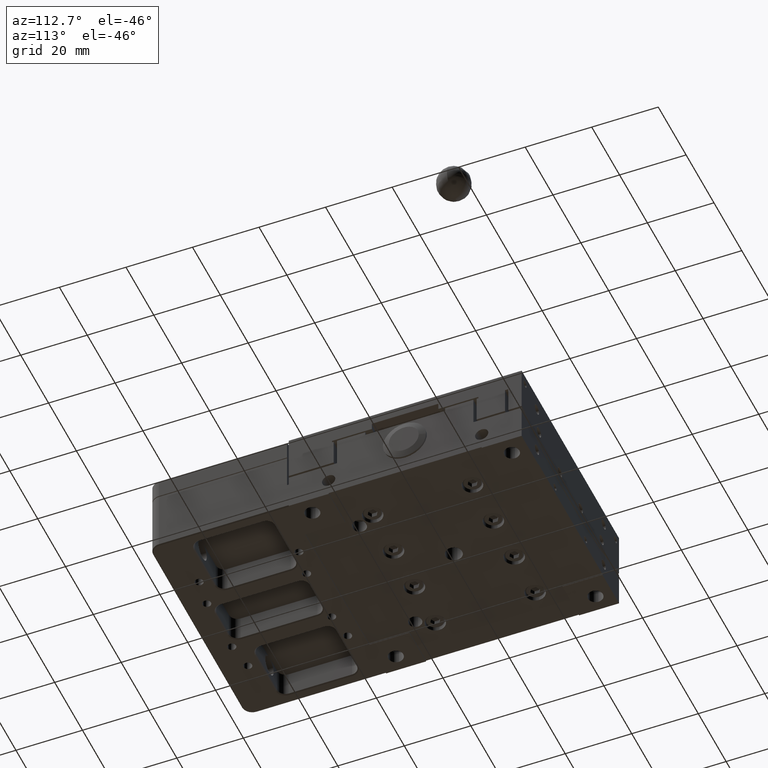
[diagram: clean part render]
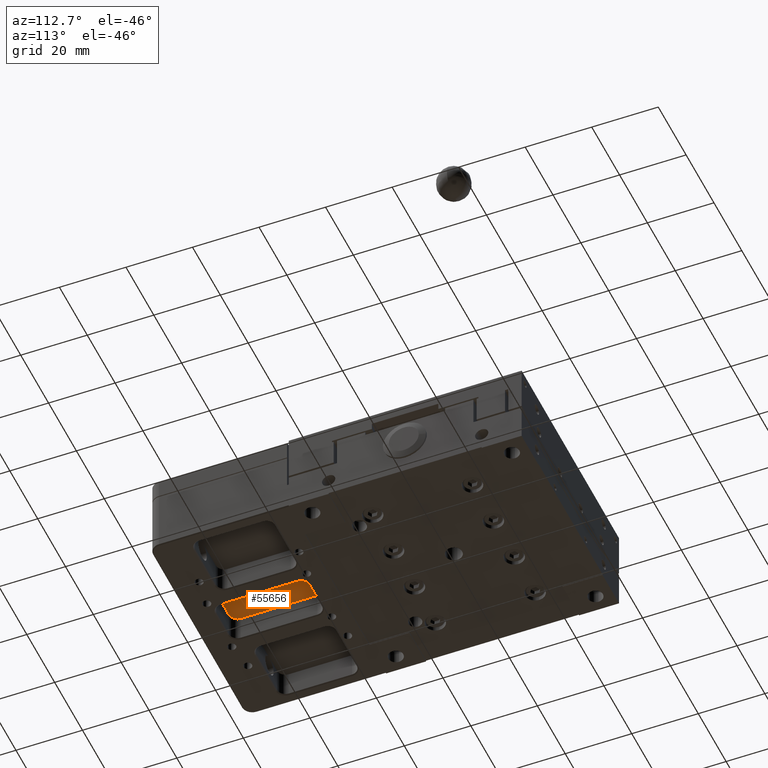
[diagram: same view with one face highlighted and labeled with its STEP entity id]
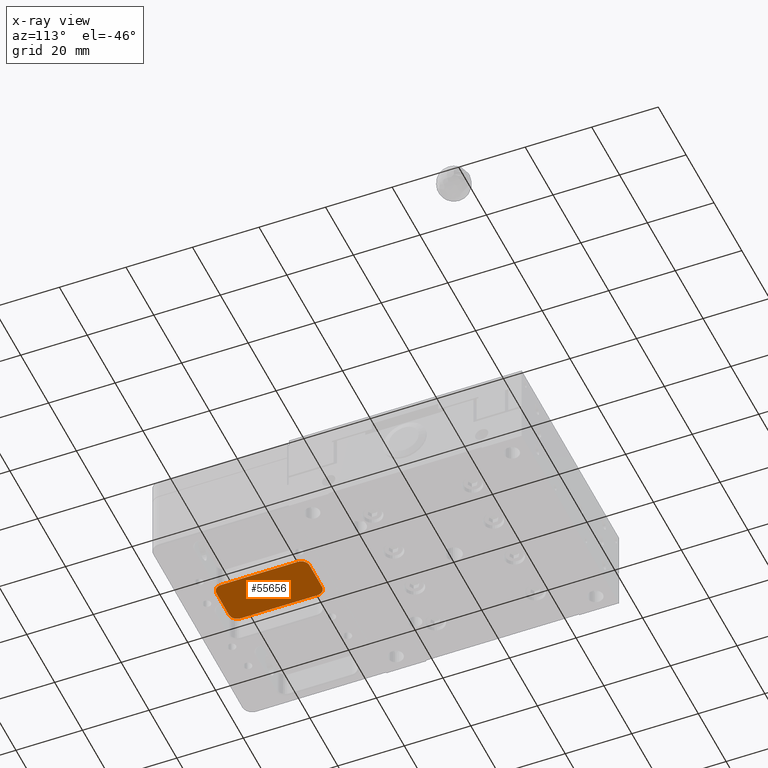
[diagram: x-ray of the same camera — body ghosted, the highlighted face saturated]
A machine part, auxiliary view. The second image highlights one B-rep face of the part: STEP entity #55656.
The next image is the same camera in x-ray: the body ghosted, the highlighted face saturated — about 0% of this face is hidden behind the body in this view.
In plain terms, the highlighted planar face has unit normal (0, 0, -1).
Its self-contained STEP definition (entity closure, byte-faithful):
#738 = CARTESIAN_POINT ( 'NONE',  ( -33.28000000000000100, -40.93999999999999800, 8.000000000000000000 ) ) ;
#1514 = ORIENTED_EDGE ( 'NONE', *, *, #41228, .T. ) ;
#1614 = CARTESIAN_POINT ( 'NONE',  ( -4.499999975758499600, -41.49999999999999300, 8.000000000000000000 ) ) ;
#1923 = LINE ( 'NONE', #6586, #17300 ) ;
#4543 = CARTESIAN_POINT ( 'NONE',  ( 6.936566276580485600, -43.34938603881244000, 8.000000000000001800 ) ) ;
#4774 = ORIENTED_EDGE ( 'NONE', *, *, #41620, .T. ) ;
#6586 = CARTESIAN_POINT ( 'NONE',  ( 8.673617379884035500E-016, -69.49999999999998600, 8.000000000000000000 ) ) ;
#7292 = DIRECTION ( 'NONE',  ( 1.000000000000000000, 0.0000000000000000000, 0.0000000000000000000 ) ) ;
#8642 = CARTESIAN_POINT ( 'NONE',  ( -4.831329923896549700, -69.49999999999998600, 8.000000000000000000 ) ) ;
#11091 = CARTESIAN_POINT ( 'NONE',  ( 6.999999999999999100, -44.00000002424000200, 8.000000000000000000 ) ) ;
#11668 = CARTESIAN_POINT ( 'NONE',  ( 7.000000002128466300, -67.33132990922153700, 8.000000000000000000 ) ) ;
#14515 = CARTESIAN_POINT ( 'NONE',  ( -7.000000000000002700, -44.00000000803000700, 7.999999999999998200 ) ) ;
#14858 = VERTEX_POINT ( 'NONE', #48533 ) ;
#15932 = ORIENTED_EDGE ( 'NONE', *, *, #39854, .T. ) ;
#17300 = VECTOR ( 'NONE', #65475, 1000.000000000000000 ) ;
#17414 = CARTESIAN_POINT ( 'NONE',  ( 4.831329909219567400, -41.49999999787114300, 8.000000000000000000 ) ) ;
#17801 = ORIENTED_EDGE ( 'NONE', *, *, #52565, .T. ) ;
#18271 = CARTESIAN_POINT ( 'NONE',  ( 6.683039022607487400, -68.26268278931122800, 7.999999999999998200 ) ) ;
#19184 = VERTEX_POINT ( 'NONE', #53270 ) ;
#19512 = VECTOR ( 'NONE', #75183, 1000.000000000000000 ) ;
#21113 = CARTESIAN_POINT ( 'NONE',  ( -6.936358649170324000, -43.34926564974560400, 8.000000000000000000 ) ) ;
#21179 = CARTESIAN_POINT ( 'NONE',  ( 4.499999991968504500, -41.49999999999999300, 8.000000000000000000 ) ) ;
#21864 = CARTESIAN_POINT ( 'NONE',  ( -5.762682798549458400, -69.18303901705098700, 7.999999999999998200 ) ) ;
#24007 = CARTESIAN_POINT ( 'NONE',  ( 4.499999991968504500, -41.49999999999999300, 8.000000000000000000 ) ) ;
#24825 = CARTESIAN_POINT ( 'NONE',  ( 6.033657284640285400, -69.00197965372322500, 8.000000000000001800 ) ) ;
#27683 = CARTESIAN_POINT ( 'NONE',  ( -6.501876632646808900, -42.46644575914376700, 8.000000000000000000 ) ) ;
#27967 = CARTESIAN_POINT ( 'NONE',  ( -6.999999999999999100, -55.49999999999999300, 7.999999999999996400 ) ) ;
#28426 = CARTESIAN_POINT ( 'NONE',  ( -6.501979657667456900, -68.53365727919049300, 8.000000000000001800 ) ) ;
#28870 = VERTEX_POINT ( 'NONE', #65712 ) ;
#30590 = CARTESIAN_POINT ( 'NONE',  ( 5.150734350254518600, -41.56364135083078500, 8.000000000000000000 ) ) ;
#31422 = CARTESIAN_POINT ( 'NONE',  ( 5.150613961184369300, -69.43656627658057800, 8.000000000000001800 ) ) ;
#34251 = CARTESIAN_POINT ( 'NONE',  ( -5.762803208054790200, -41.81716861709709600, 8.000000000000000000 ) ) ;
#34986 = CARTESIAN_POINT ( 'NONE',  ( -6.936566277092738100, -67.65061395855437400, 8.000000000000001800 ) ) ;
#35314 = VECTOR ( 'NONE', #40838, 1000.000000000000000 ) ;
#36097 = CARTESIAN_POINT ( 'NONE',  ( 6.999999999999999100, -55.49999999999999300, 8.000000000000000000 ) ) ;
#37158 = CARTESIAN_POINT ( 'NONE',  ( 6.033554240853732200, -41.99812336735174500, 8.000000000000000000 ) ) ;
#37987 = CARTESIAN_POINT ( 'NONE',  ( 4.499999975758505000, -69.50000000000000000, 8.000000000000000000 ) ) ;
#39854 = EDGE_CURVE ( 'NONE', #50030, #54300, #54749, .T. ) ;
#40838 = DIRECTION ( 'NONE',  ( 0.0000000000000000000, 1.000000000000000000, -1.450437688943818100E-016 ) ) ;
#40843 = CARTESIAN_POINT ( 'NONE',  ( -4.831711099648719800, -41.49999999999998600, 8.000000000000000000 ) ) ;
#41096 = AXIS2_PLACEMENT_3D ( 'NONE', #738, #46487, #7292 ) ;
#41228 = EDGE_CURVE ( 'NONE', #14858, #52135, #1923, .T. ) ;
#41561 = CARTESIAN_POINT ( 'NONE',  ( -7.000000000000001800, -66.99999997576000500, 8.000000000000000000 ) ) ;
#41620 = EDGE_CURVE ( 'NONE', #19184, #14858, #78934, .T. ) ;
#43306 = B_SPLINE_CURVE_WITH_KNOTS ( 'NONE', 3,
 ( #24007, #17414, #30590, #76238, #37158, #82821, #43698, #4543, #50259, #11091 ),
 .UNSPECIFIED., .F., .F.,
 ( 4, 2, 2, 2, 4 ),
 ( 0.0000000000000000000, 0.2500000000000000000, 0.5000000000000000000, 0.7500000000000000000, 1.000000000000000000 ),
 .UNSPECIFIED. ) ;
#43560 = VERTEX_POINT ( 'NONE', #21179 ) ;
#43698 = CARTESIAN_POINT ( 'NONE',  ( 6.682831382902432600, -42.73719679194196900, 8.000000000000000000 ) ) ;
#44604 = EDGE_CURVE ( 'NONE', #52135, #50030, #81965, .T. ) ;
#46406 = DIRECTION ( 'NONE',  ( 1.000000000000000000, 0.0000000000000000000, 0.0000000000000000000 ) ) ;
#46487 = DIRECTION ( 'NONE',  ( 0.0000000000000000000, 0.0000000000000000000, -1.000000000000000000 ) ) ;
#47842 = CARTESIAN_POINT ( 'NONE',  ( -5.150734363275993200, -69.43635864550545000, 8.000000000000000000 ) ) ;
#47998 = VERTEX_POINT ( 'NONE', #74991 ) ;
#48533 = CARTESIAN_POINT ( 'NONE',  ( 4.499999975758505000, -69.50000000000000000, 8.000000000000000000 ) ) ;
#50030 = VERTEX_POINT ( 'NONE', #74826 ) ;
#50259 = CARTESIAN_POINT ( 'NONE',  ( 7.000000000000000000, -43.66828890035338200, 8.000000000000000000 ) ) ;
#50831 = CARTESIAN_POINT ( 'NONE',  ( 7.000000000000000900, -66.99999999197001400, 8.000000000000000000 ) ) ;
#52135 = VERTEX_POINT ( 'NONE', #67713 ) ;
#52565 = EDGE_CURVE ( 'NONE', #54300, #47998, #58848, .T. ) ;
#53270 = CARTESIAN_POINT ( 'NONE',  ( 7.000000000000000900, -66.99999999197001400, 8.000000000000000000 ) ) ;
#54300 = VERTEX_POINT ( 'NONE', #78932 ) ;
#54299 = LINE ( 'NONE', #36097, #19512 ) ;
#54749 = LINE ( 'NONE', #27967, #35314 ) ;
#55281 = LINE ( 'NONE', #59242, #78796 ) ;
#55656 = ADVANCED_FACE ( 'NONE', ( #77517 ), #59312, .T. ) ;
#57391 = CARTESIAN_POINT ( 'NONE',  ( 6.936358649167794400, -67.65073435025802000, 8.000000000000000000 ) ) ;
#58848 = B_SPLINE_CURVE_WITH_KNOTS ( 'NONE', 3,
 ( #14515, #60230, #21113, #66786, #27683, #73364, #34251, #79946, #40843, #1614 ),
 .UNSPECIFIED., .F., .F.,
 ( 4, 2, 2, 2, 4 ),
 ( 0.0000000000000000000, 0.2500000000000000000, 0.5000000000000000000, 0.7500000000000000000, 1.000000000000000000 ),
 .UNSPECIFIED. ) ;
#59242 = CARTESIAN_POINT ( 'NONE',  ( -8.673617379884035500E-016, -41.49999999999999300, 8.000000000000000000 ) ) ;
#59312 = PLANE ( 'NONE',  #41096 ) ;
#60230 = CARTESIAN_POINT ( 'NONE',  ( -7.000000002128466300, -43.66867009077593300, 8.000000000000000000 ) ) ;
#60958 = EDGE_CURVE ( 'NONE', #47998, #43560, #55281, .T. ) ;
#60967 = CARTESIAN_POINT ( 'NONE',  ( -4.500000000000000900, -69.50000000000000000, 8.000000000000000000 ) ) ;
#61734 = EDGE_CURVE ( 'NONE', #43560, #28870, #43306, .T. ) ;
#63960 = CARTESIAN_POINT ( 'NONE',  ( 6.501876632648585300, -68.53355424085343400, 8.000000000000000000 ) ) ;
#64750 = ORIENTED_EDGE ( 'NONE', *, *, #61734, .T. ) ;
#65475 = DIRECTION ( 'NONE',  ( -1.000000000000000000, 0.0000000000000000000, 0.0000000000000000000 ) ) ;
#65712 = CARTESIAN_POINT ( 'NONE',  ( 6.999999999999999100, -44.00000002424000200, 8.000000000000000000 ) ) ;
#66786 = CARTESIAN_POINT ( 'NONE',  ( -6.683039022604961400, -42.73731721068519800, 7.999999999999998200 ) ) ;
#67517 = CARTESIAN_POINT ( 'NONE',  ( -6.033554248265283500, -69.00187662674223100, 8.000000000000000000 ) ) ;
#67713 = CARTESIAN_POINT ( 'NONE',  ( -4.500000000000000900, -69.50000000000000000, 8.000000000000000000 ) ) ;
#70522 = CARTESIAN_POINT ( 'NONE',  ( 5.762803208059828800, -69.18283138290291800, 8.000000000000000000 ) ) ;
#73364 = CARTESIAN_POINT ( 'NONE',  ( -6.033657284642075100, -41.99802034627961700, 8.000000000000001800 ) ) ;
#74092 = CARTESIAN_POINT ( 'NONE',  ( -6.682831385463694000, -68.26280320327109100, 8.000000000000000000 ) ) ;
#74140 = ORIENTED_EDGE ( 'NONE', *, *, #60958, .T. ) ;
#74826 = CARTESIAN_POINT ( 'NONE',  ( -7.000000000000001800, -66.99999997576000500, 8.000000000000000000 ) ) ;
#74991 = CARTESIAN_POINT ( 'NONE',  ( -4.499999975758499600, -41.49999999999999300, 8.000000000000000000 ) ) ;
#75183 = DIRECTION ( 'NONE',  ( 0.0000000000000000000, -1.000000000000000000, 1.450437688943818100E-016 ) ) ;
#76238 = CARTESIAN_POINT ( 'NONE',  ( 5.762682789310531500, -41.81696097739222800, 7.999999999999998200 ) ) ;
#76492 = ORIENTED_EDGE ( 'NONE', *, *, #80318, .T. ) ;
#77099 = CARTESIAN_POINT ( 'NONE',  ( 4.831711099643667900, -69.50000000000000000, 8.000000000000000000 ) ) ;
#77517 = FACE_OUTER_BOUND ( 'NONE', #80051, .T. ) ;
#78796 = VECTOR ( 'NONE', #46406, 1000.000000000000000 ) ;
#78932 = CARTESIAN_POINT ( 'NONE',  ( -7.000000000000002700, -44.00000000803000700, 7.999999999999998200 ) ) ;
#78934 = B_SPLINE_CURVE_WITH_KNOTS ( 'NONE', 3,
 ( #50831, #11668, #57391, #18271, #63960, #24825, #70522, #31422, #77099, #37987 ),
 .UNSPECIFIED., .F., .F.,
 ( 4, 2, 2, 2, 4 ),
 ( 0.0000000000000000000, 0.2500000000000000000, 0.5000000000000000000, 0.7500000000000000000, 1.000000000000000000 ),
 .UNSPECIFIED. ) ;
#79946 = CARTESIAN_POINT ( 'NONE',  ( -5.150613961189419500, -41.56343372341941500, 8.000000000000001800 ) ) ;
#80051 = EDGE_LOOP ( 'NONE', ( #4774, #1514, #83836, #15932, #17801, #74140, #64750, #76492 ) ) ;
#80318 = EDGE_CURVE ( 'NONE', #28870, #19184, #54299, .T. ) ;
#80669 = CARTESIAN_POINT ( 'NONE',  ( -6.999999999999999100, -67.33171109825012500, 8.000000000000000000 ) ) ;
#81965 = B_SPLINE_CURVE_WITH_KNOTS ( 'NONE', 3,
 ( #60967, #8642, #47842, #21864, #67517, #28426, #74092, #34986, #80669, #41561 ),
 .UNSPECIFIED., .F., .F.,
 ( 4, 2, 2, 2, 4 ),
 ( 0.0000000000000000000, 0.2500000000000000000, 0.5000000000000000000, 0.7500000000000000000, 1.000000000000000000 ),
 .UNSPECIFIED. ) ;
#82821 = CARTESIAN_POINT ( 'NONE',  ( 6.501979653720755300, -42.46634271535728500, 8.000000000000001800 ) ) ;
#83836 = ORIENTED_EDGE ( 'NONE', *, *, #44604, .T. ) ;